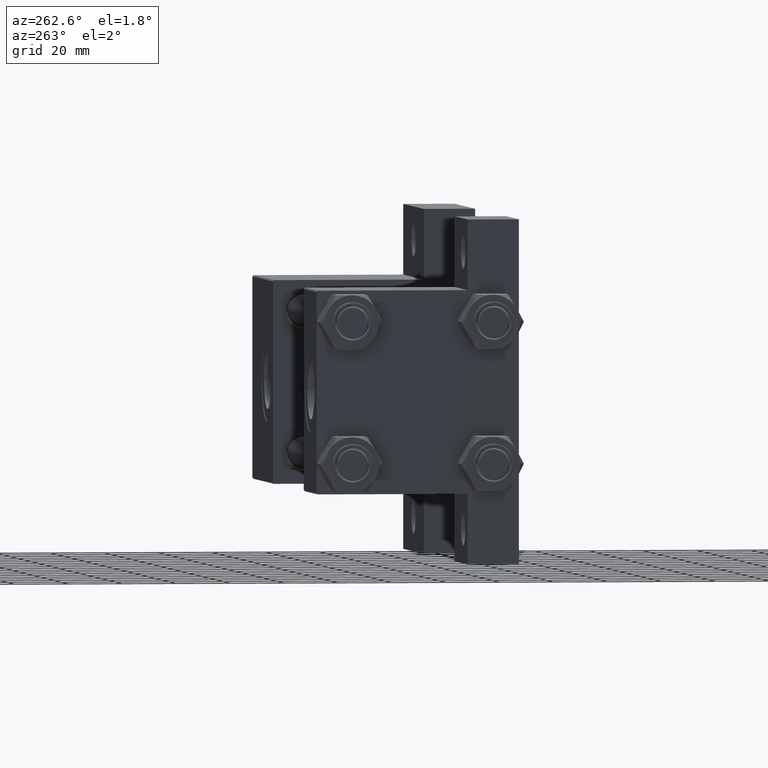
[diagram: clean part render]
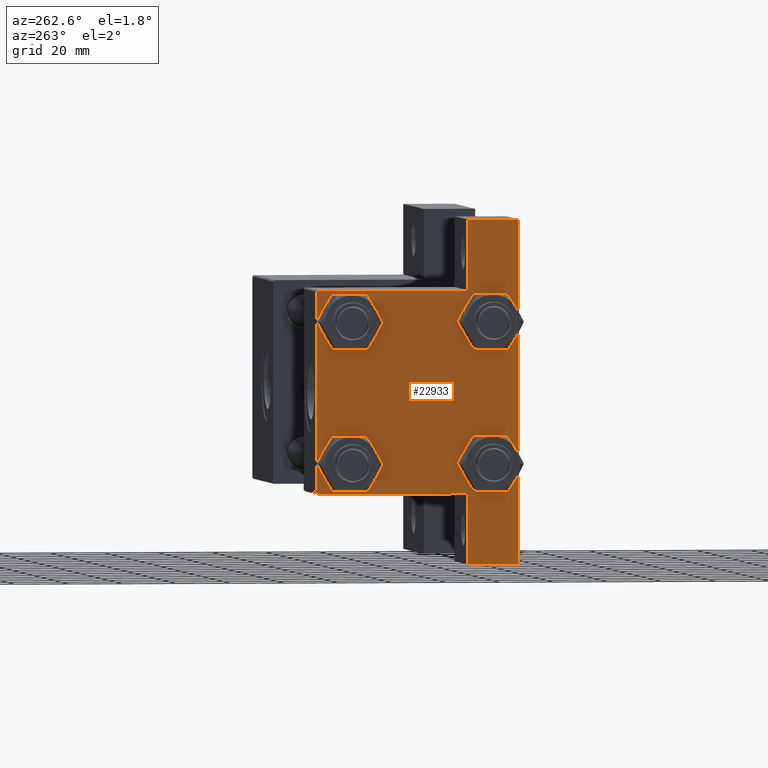
[diagram: same view with one face highlighted and labeled with its STEP entity id]
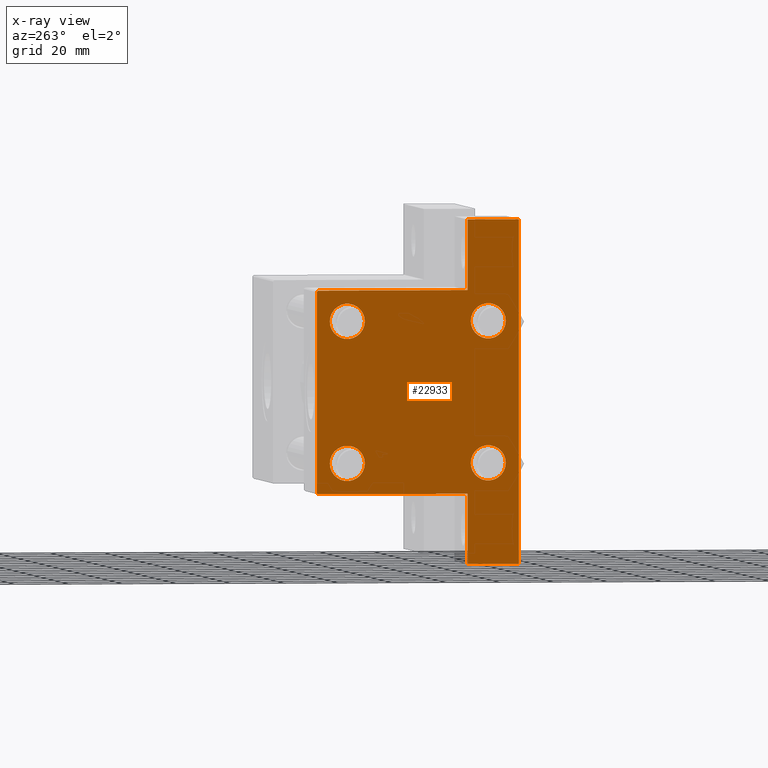
[diagram: x-ray of the same camera — body ghosted, the highlighted face saturated]
A machine part, auxiliary view. The second image highlights one B-rep face of the part: STEP entity #22933.
The next image is the same camera in x-ray: the body ghosted, the highlighted face saturated — about 0% of this face is hidden behind the body in this view.
In plain terms, the highlighted planar face has unit normal (-1, 0, -0).
Its self-contained STEP definition (entity closure, byte-faithful):
#826 = FACE_BOUND ( 'NONE', #22379, .T. ) ;
#1389 = ORIENTED_EDGE ( 'NONE', *, *, #45825, .T. ) ;
#1394 = CARTESIAN_POINT ( 'NONE',  ( 0.000000000000000000, -37.50000000000000711, 37.49999999999999289 ) ) ;
#1785 = LINE ( 'NONE', #34474, #3504 ) ;
#1896 = CARTESIAN_POINT ( 'NONE',  ( 0.000000000000000000, 37.49999999999999289, -18.49999999999999645 ) ) ;
#2883 = VERTEX_POINT ( 'NONE', #25149 ) ;
#3420 = VERTEX_POINT ( 'NONE', #15922 ) ;
#3504 = VECTOR ( 'NONE', #9254, 1000.000000000000000 ) ;
#3993 = CARTESIAN_POINT ( 'NONE',  ( 0.000000000000000000, -26.14999999999999147, 26.15000000000000924 ) ) ;
#4511 = LINE ( 'NONE', #36730, #22455 ) ;
#5437 = VECTOR ( 'NONE', #33551, 1000.000000000000000 ) ;
#5625 = FACE_BOUND ( 'NONE', #14754, .T. ) ;
#6104 = CARTESIAN_POINT ( 'NONE',  ( 1.595073532467135441E-14, 63.50000000000001421, 26.72167621838005047 ) ) ;
#6305 = AXIS2_PLACEMENT_3D ( 'NONE', #11847, #41160, #33929 ) ;
#6410 = AXIS2_PLACEMENT_3D ( 'NONE', #18613, #30600, #14992 ) ;
#6504 = EDGE_CURVE ( 'NONE', #39608, #2883, #28440, .T. ) ;
#6597 = EDGE_CURVE ( 'NONE', #44957, #34682, #25151, .T. ) ;
#6835 = LINE ( 'NONE', #14740, #7015 ) ;
#6886 = ORIENTED_EDGE ( 'NONE', *, *, #7049, .F. ) ;
#7015 = VECTOR ( 'NONE', #18828, 1000.000000000000000 ) ;
#7049 = EDGE_CURVE ( 'NONE', #15573, #8814, #6835, .T. ) ;
#7098 = CIRCLE ( 'NONE', #6305, 6.500000000000023093 ) ;
#7119 = DIRECTION ( 'NONE',  ( 1.000000000000000000, -0.000000000000000000, 0.000000000000000000 ) ) ;
#7619 = CARTESIAN_POINT ( 'NONE',  ( 0.000000000000000000, 37.49999999999999289, 37.50000000000000000 ) ) ;
#8062 = VERTEX_POINT ( 'NONE', #11273 ) ;
#8064 = CARTESIAN_POINT ( 'NONE',  ( 0.000000000000000000, -26.14999999999999147, -32.65000000000002700 ) ) ;
#8814 = VERTEX_POINT ( 'NONE', #35252 ) ;
#9041 = ORIENTED_EDGE ( 'NONE', *, *, #38844, .T. ) ;
#9246 = CARTESIAN_POINT ( 'NONE',  ( 0.000000000000000000, 0.000000000000000000, 0.000000000000000000 ) ) ;
#9254 = DIRECTION ( 'NONE',  ( 0.000000000000000000, -1.734723475976806848E-16, -1.000000000000000000 ) ) ;
#9309 = ORIENTED_EDGE ( 'NONE', *, *, #6504, .T. ) ;
#9883 = ORIENTED_EDGE ( 'NONE', *, *, #40464, .T. ) ;
#10078 = EDGE_CURVE ( 'NONE', #35614, #34682, #19080, .T. ) ;
#10308 = VERTEX_POINT ( 'NONE', #37275 ) ;
#11010 = AXIS2_PLACEMENT_3D ( 'NONE', #41902, #31306, #24113 ) ;
#11273 = CARTESIAN_POINT ( 'NONE',  ( 0.000000000000000000, 26.14999999999999858, -19.64999999999998792 ) ) ;
#11769 = ORIENTED_EDGE ( 'NONE', *, *, #13259, .F. ) ;
#11847 = CARTESIAN_POINT ( 'NONE',  ( 0.000000000000000000, 26.14999999999999858, 26.15000000000000213 ) ) ;
#12124 = ORIENTED_EDGE ( 'NONE', *, *, #16483, .T. ) ;
#12155 = ORIENTED_EDGE ( 'NONE', *, *, #10078, .F. ) ;
#12296 = EDGE_CURVE ( 'NONE', #3420, #26609, #20753, .T. ) ;
#12627 = ORIENTED_EDGE ( 'NONE', *, *, #22874, .T. ) ;
#12901 = VERTEX_POINT ( 'NONE', #27357 ) ;
#13259 = EDGE_CURVE ( 'NONE', #10308, #33619, #14817, .T. ) ;
#14076 = VECTOR ( 'NONE', #33743, 1000.000000000000114 ) ;
#14689 = DIRECTION ( 'NONE',  ( 0.000000000000000000, 0.000000000000000000, 1.000000000000000000 ) ) ;
#14740 = CARTESIAN_POINT ( 'NONE',  ( 3.977209754999744250E-16, -63.49999999999998579, -18.50000000000000355 ) ) ;
#14754 = EDGE_LOOP ( 'NONE', ( #9309, #33994 ) ) ;
#14817 = LINE ( 'NONE', #7619, #5437 ) ;
#14992 = DIRECTION ( 'NONE',  ( 0.000000000000000000, 0.000000000000000000, 1.000000000000000000 ) ) ;
#15166 = EDGE_CURVE ( 'NONE', #35614, #40929, #35184, .T. ) ;
#15195 = AXIS2_PLACEMENT_3D ( 'NONE', #3993, #18439, #33073 ) ;
#15373 = EDGE_CURVE ( 'NONE', #2883, #39608, #7098, .T. ) ;
#15464 = CARTESIAN_POINT ( 'NONE',  ( 1.595073532467135757E-14, 63.50000000000001421, -18.50000000000000355 ) ) ;
#15493 = LINE ( 'NONE', #18871, #14076 ) ;
#15573 = VERTEX_POINT ( 'NONE', #45470 ) ;
#15911 = EDGE_CURVE ( 'NONE', #26601, #33619, #35304, .T. ) ;
#15922 = CARTESIAN_POINT ( 'NONE',  ( 0.000000000000000000, -26.14999999999999147, -19.64999999999999503 ) ) ;
#16060 = LINE ( 'NONE', #1394, #44864 ) ;
#16314 = CIRCLE ( 'NONE', #34726, 6.500000000000015987 ) ;
#16483 = EDGE_CURVE ( 'NONE', #8062, #22123, #16314, .T. ) ;
#16832 = EDGE_CURVE ( 'NONE', #40929, #21951, #4511, .T. ) ;
#16937 = ORIENTED_EDGE ( 'NONE', *, *, #40636, .T. ) ;
#17142 = AXIS2_PLACEMENT_3D ( 'NONE', #9246, #46011, #23896 ) ;
#17291 = CARTESIAN_POINT ( 'NONE',  ( -0.000000000000000000, -37.25000000000000000, 37.25000000000000000 ) ) ;
#17296 = CARTESIAN_POINT ( 'NONE',  ( 1.595073532467135441E-14, 63.50000000000000000, -18.50000000000000355 ) ) ;
#18292 = DIRECTION ( 'NONE',  ( 1.000000000000000000, -0.000000000000000000, 0.000000000000000000 ) ) ;
#18439 = DIRECTION ( 'NONE',  ( 1.000000000000000000, -0.000000000000000000, 0.000000000000000000 ) ) ;
#18613 = CARTESIAN_POINT ( 'NONE',  ( 0.000000000000000000, -26.14999999999999147, -26.15000000000000924 ) ) ;
#18828 = DIRECTION ( 'NONE',  ( 4.278042683914906889E-17, -1.000000000000000000, 0.000000000000000000 ) ) ;
#18871 = CARTESIAN_POINT ( 'NONE',  ( 0.000000000000000000, 37.24999999999999289, 37.24999999999999289 ) ) ;
#19051 = CIRCLE ( 'NONE', #15195, 6.500000000000023093 ) ;
#19080 = LINE ( 'NONE', #15464, #32460 ) ;
#19117 = ORIENTED_EDGE ( 'NONE', *, *, #16832, .T. ) ;
#19588 = FACE_OUTER_BOUND ( 'NONE', #31631, .T. ) ;
#20753 = CIRCLE ( 'NONE', #26887, 6.500000000000015987 ) ;
#21678 = DIRECTION ( 'NONE',  ( 1.000000000000000000, -0.000000000000000000, 0.000000000000000000 ) ) ;
#21886 = CARTESIAN_POINT ( 'NONE',  ( 0.000000000000000000, 26.14999999999999858, -32.65000000000001990 ) ) ;
#21929 = CARTESIAN_POINT ( 'NONE',  ( 0.000000000000000000, 26.14999999999999858, 32.65000000000002700 ) ) ;
#21951 = VERTEX_POINT ( 'NONE', #23115 ) ;
#22123 = VERTEX_POINT ( 'NONE', #21886 ) ;
#22379 = EDGE_LOOP ( 'NONE', ( #9041, #1389 ) ) ;
#22416 = VECTOR ( 'NONE', #39622, 1000.000000000000114 ) ;
#22455 = VECTOR ( 'NONE', #37198, 1000.000000000000000 ) ;
#22467 = CARTESIAN_POINT ( 'NONE',  ( 0.000000000000000000, 37.49999999999999289, 37.00000000000000000 ) ) ;
#22874 = EDGE_CURVE ( 'NONE', #10308, #44957, #15493, .T. ) ;
#22933 = ADVANCED_FACE ( 'NONE', ( #826, #30139, #26555, #5625, #19588 ), #23666, .T. ) ;
#23115 = CARTESIAN_POINT ( 'NONE',  ( 3.977209754999747208E-16, -63.50000000000000000, -37.49999999999999289 ) ) ;
#23215 = DIRECTION ( 'NONE',  ( 1.000000000000000000, -0.000000000000000000, 0.000000000000000000 ) ) ;
#23500 = ORIENTED_EDGE ( 'NONE', *, *, #15911, .T. ) ;
#23666 = PLANE ( 'NONE',  #17142 ) ;
#23896 = DIRECTION ( 'NONE',  ( -0.000000000000000000, 0.000000000000000000, 1.000000000000000000 ) ) ;
#24113 = DIRECTION ( 'NONE',  ( 0.000000000000000000, 0.000000000000000000, 1.000000000000000000 ) ) ;
#24167 = DIRECTION ( 'NONE',  ( 0.000000000000000000, 0.000000000000000000, 1.000000000000000000 ) ) ;
#24221 = CIRCLE ( 'NONE', #41879, 6.500000000000023093 ) ;
#24603 = VECTOR ( 'NONE', #39561, 1000.000000000000000 ) ;
#24750 = VERTEX_POINT ( 'NONE', #39170 ) ;
#24956 = EDGE_CURVE ( 'NONE', #26601, #15573, #16060, .T. ) ;
#25032 = DIRECTION ( 'NONE',  ( 0.000000000000000000, 0.000000000000000000, 1.000000000000000000 ) ) ;
#25148 = DIRECTION ( 'NONE',  ( 0.000000000000000000, 0.000000000000000000, 1.000000000000000000 ) ) ;
#25149 = CARTESIAN_POINT ( 'NONE',  ( 0.000000000000000000, 26.14999999999999858, 19.64999999999998437 ) ) ;
#25151 = LINE ( 'NONE', #46317, #24603 ) ;
#25423 = CARTESIAN_POINT ( 'NONE',  ( 1.595073532467135441E-14, 63.50000000000000000, -37.50000000000002132 ) ) ;
#26135 = AXIS2_PLACEMENT_3D ( 'NONE', #36301, #18292, #25032 ) ;
#26555 = FACE_BOUND ( 'NONE', #35777, .T. ) ;
#26601 = VERTEX_POINT ( 'NONE', #40980 ) ;
#26609 = VERTEX_POINT ( 'NONE', #8064 ) ;
#26670 = EDGE_LOOP ( 'NONE', ( #41050, #9883 ) ) ;
#26887 = AXIS2_PLACEMENT_3D ( 'NONE', #41482, #23215, #24167 ) ;
#27357 = CARTESIAN_POINT ( 'NONE',  ( 0.000000000000000000, -26.14999999999999147, 19.64999999999999147 ) ) ;
#28400 = CARTESIAN_POINT ( 'NONE',  ( 0.000000000000000000, 26.14999999999999858, -26.15000000000000213 ) ) ;
#28440 = CIRCLE ( 'NONE', #26135, 6.500000000000023093 ) ;
#28787 = EDGE_CURVE ( 'NONE', #8814, #21951, #1785, .T. ) ;
#29517 = ORIENTED_EDGE ( 'NONE', *, *, #15166, .T. ) ;
#29739 = ORIENTED_EDGE ( 'NONE', *, *, #6597, .T. ) ;
#30111 = DIRECTION ( 'NONE',  ( -2.877097866686192789E-16, -1.000000000000000000, 0.000000000000000000 ) ) ;
#30139 = FACE_BOUND ( 'NONE', #26670, .T. ) ;
#30168 = CIRCLE ( 'NONE', #11010, 6.500000000000015987 ) ;
#30600 = DIRECTION ( 'NONE',  ( 1.000000000000000000, -0.000000000000000000, 0.000000000000000000 ) ) ;
#31306 = DIRECTION ( 'NONE',  ( 1.000000000000000000, -0.000000000000000000, 0.000000000000000000 ) ) ;
#31631 = EDGE_LOOP ( 'NONE', ( #44313, #23500, #11769, #12627, #29739, #12155, #29517, #19117, #37609, #6886 ) ) ;
#31806 = DIRECTION ( 'NONE',  ( 0.000000000000000000, -1.734723475976806848E-16, -1.000000000000000000 ) ) ;
#32460 = VECTOR ( 'NONE', #30111, 1000.000000000000000 ) ;
#33073 = DIRECTION ( 'NONE',  ( 0.000000000000000000, 0.000000000000000000, 1.000000000000000000 ) ) ;
#33551 = DIRECTION ( 'NONE',  ( 0.000000000000000000, -1.000000000000000000, -9.251858538542971581E-17 ) ) ;
#33619 = VERTEX_POINT ( 'NONE', #47315 ) ;
#33743 = DIRECTION ( 'NONE',  ( 0.000000000000000000, 0.7071067811865474617, -0.7071067811865474617 ) ) ;
#33929 = DIRECTION ( 'NONE',  ( 0.000000000000000000, 0.000000000000000000, 1.000000000000000000 ) ) ;
#33994 = ORIENTED_EDGE ( 'NONE', *, *, #15373, .T. ) ;
#34474 = CARTESIAN_POINT ( 'NONE',  ( 3.977209754999747208E-16, -63.49999999999998579, 26.72167621838007889 ) ) ;
#34682 = VERTEX_POINT ( 'NONE', #1896 ) ;
#34726 = AXIS2_PLACEMENT_3D ( 'NONE', #28400, #21678, #14689 ) ;
#34782 = DIRECTION ( 'NONE',  ( 0.000000000000000000, 9.251858538542971581E-17, -1.000000000000000000 ) ) ;
#35184 = LINE ( 'NONE', #6104, #40020 ) ;
#35252 = CARTESIAN_POINT ( 'NONE',  ( 3.977209754999747208E-16, -63.50000000000000000, -18.50000000000000355 ) ) ;
#35304 = LINE ( 'NONE', #17291, #22416 ) ;
#35614 = VERTEX_POINT ( 'NONE', #17296 ) ;
#35777 = EDGE_LOOP ( 'NONE', ( #12124, #16937 ) ) ;
#36301 = CARTESIAN_POINT ( 'NONE',  ( 0.000000000000000000, 26.14999999999999858, 26.15000000000000213 ) ) ;
#36730 = CARTESIAN_POINT ( 'NONE',  ( 0.000000000000000000, 37.49999999999999289, -37.50000000000000000 ) ) ;
#37198 = DIRECTION ( 'NONE',  ( 0.000000000000000000, -1.000000000000000000, -9.251858538542972814E-17 ) ) ;
#37275 = CARTESIAN_POINT ( 'NONE',  ( 0.000000000000000000, 36.99999999999999289, 37.50000000000000000 ) ) ;
#37609 = ORIENTED_EDGE ( 'NONE', *, *, #28787, .F. ) ;
#37862 = CIRCLE ( 'NONE', #6410, 6.500000000000015987 ) ;
#38844 = EDGE_CURVE ( 'NONE', #24750, #12901, #19051, .T. ) ;
#39170 = CARTESIAN_POINT ( 'NONE',  ( 0.000000000000000000, -26.14999999999999147, 32.65000000000003411 ) ) ;
#39319 = CARTESIAN_POINT ( 'NONE',  ( 0.000000000000000000, -26.14999999999999147, 26.15000000000000924 ) ) ;
#39561 = DIRECTION ( 'NONE',  ( 0.000000000000000000, 0.000000000000000000, -1.000000000000000000 ) ) ;
#39608 = VERTEX_POINT ( 'NONE', #21929 ) ;
#39622 = DIRECTION ( 'NONE',  ( -0.000000000000000000, 0.7071067811865474617, 0.7071067811865474617 ) ) ;
#40020 = VECTOR ( 'NONE', #31806, 1000.000000000000000 ) ;
#40464 = EDGE_CURVE ( 'NONE', #26609, #3420, #37862, .T. ) ;
#40636 = EDGE_CURVE ( 'NONE', #22123, #8062, #30168, .T. ) ;
#40929 = VERTEX_POINT ( 'NONE', #25423 ) ;
#40980 = CARTESIAN_POINT ( 'NONE',  ( 0.000000000000000000, -37.50000000000000711, 36.99999999999999289 ) ) ;
#41050 = ORIENTED_EDGE ( 'NONE', *, *, #12296, .T. ) ;
#41160 = DIRECTION ( 'NONE',  ( 1.000000000000000000, -0.000000000000000000, 0.000000000000000000 ) ) ;
#41482 = CARTESIAN_POINT ( 'NONE',  ( 0.000000000000000000, -26.14999999999999147, -26.15000000000000924 ) ) ;
#41879 = AXIS2_PLACEMENT_3D ( 'NONE', #39319, #7119, #25148 ) ;
#41902 = CARTESIAN_POINT ( 'NONE',  ( 0.000000000000000000, 26.14999999999999858, -26.15000000000000213 ) ) ;
#44313 = ORIENTED_EDGE ( 'NONE', *, *, #24956, .F. ) ;
#44864 = VECTOR ( 'NONE', #34782, 1000.000000000000000 ) ;
#44957 = VERTEX_POINT ( 'NONE', #22467 ) ;
#45470 = CARTESIAN_POINT ( 'NONE',  ( -7.145701223179004046E-16, -37.50000000000000711, -18.50000000000000355 ) ) ;
#45825 = EDGE_CURVE ( 'NONE', #12901, #24750, #24221, .T. ) ;
#46011 = DIRECTION ( 'NONE',  ( -1.000000000000000000, 0.000000000000000000, -0.000000000000000000 ) ) ;
#46317 = CARTESIAN_POINT ( 'NONE',  ( 0.000000000000000000, 37.49999999999999289, 37.50000000000000000 ) ) ;
#47315 = CARTESIAN_POINT ( 'NONE',  ( 0.000000000000000000, -37.00000000000000711, 37.49999999999999289 ) ) ;